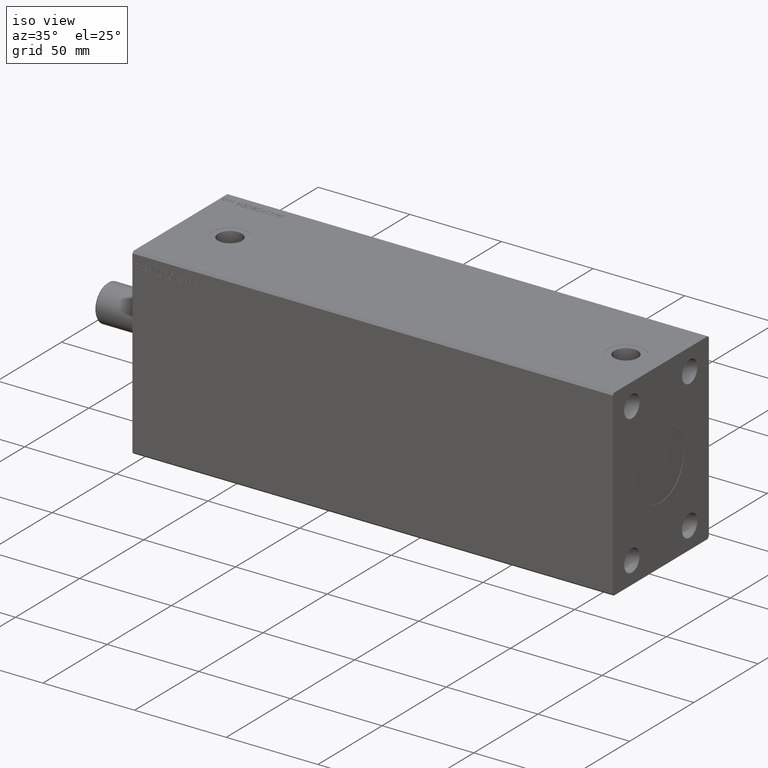
[diagram: clean part render]
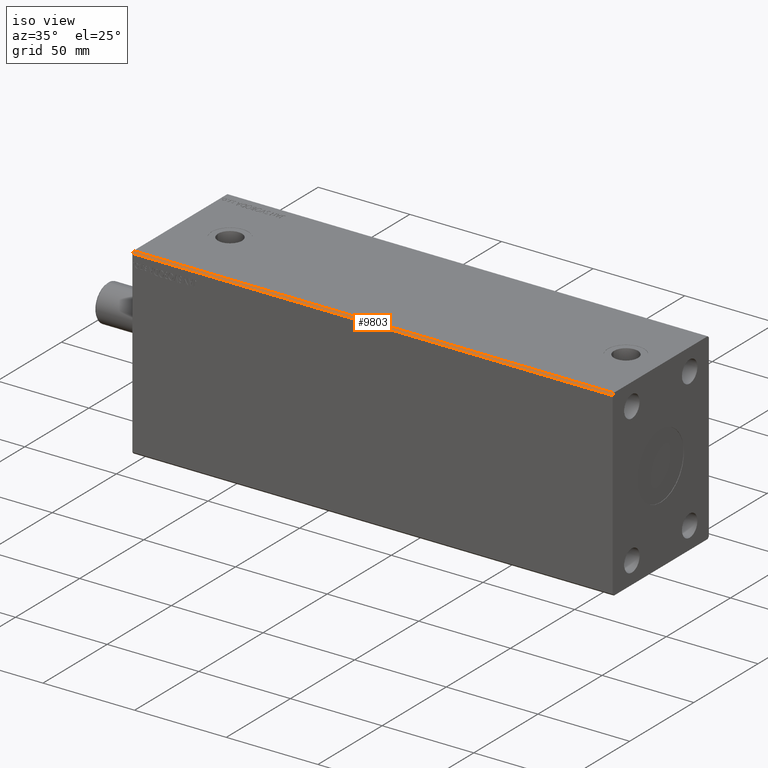
[diagram: same view with one face highlighted and labeled with its STEP entity id]
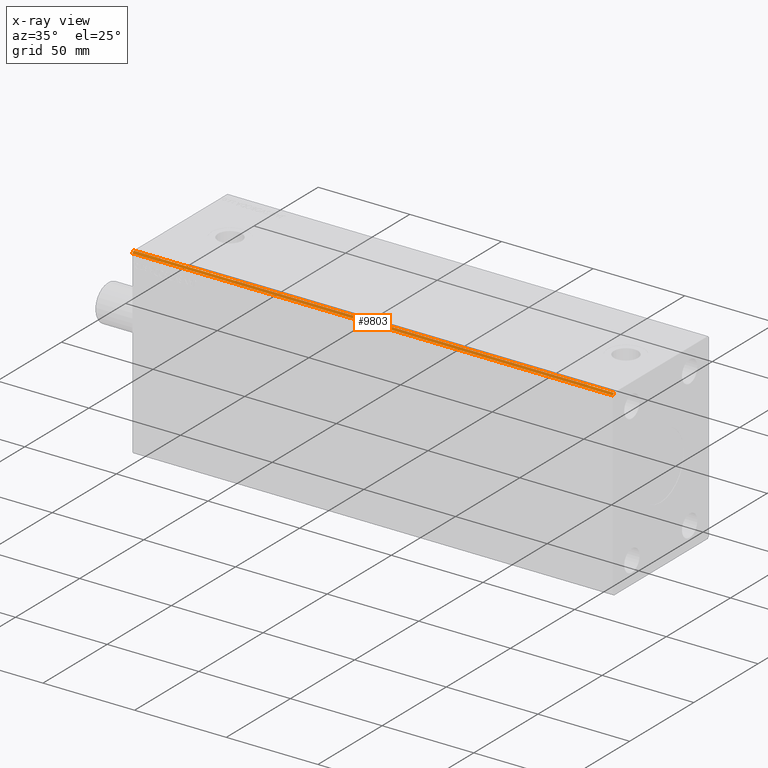
[diagram: x-ray of the same camera — body ghosted, the highlighted face saturated]
A machine part, iso view. The second image highlights one B-rep face of the part: STEP entity #9803.
The next image is the same camera in x-ray: the body ghosted, the highlighted face saturated — about 0% of this face is hidden behind the body in this view.
In plain terms, the highlighted planar face has unit normal (0, 0.7071, -0.7071).
Its self-contained STEP definition (entity closure, byte-faithful):
#665 = EDGE_CURVE ( 'NONE', #36660, #4053, #11040, .T. ) ;
#735 = EDGE_LOOP ( 'NONE', ( #9226, #15755, #7042, #28615 ) ) ;
#1335 = AXIS2_PLACEMENT_3D ( 'NONE', #35379, #42364, #24612 ) ;
#2355 = LINE ( 'NONE', #9316, #23075 ) ;
#4053 = VERTEX_POINT ( 'NONE', #34500 ) ;
#4320 = EDGE_CURVE ( 'NONE', #5633, #5836, #41718, .T. ) ;
#5519 = VECTOR ( 'NONE', #9069, 1000.000000000000000 ) ;
#5633 = VERTEX_POINT ( 'NONE', #33251 ) ;
#5836 = VERTEX_POINT ( 'NONE', #31196 ) ;
#6314 = CARTESIAN_POINT ( 'NONE',  ( 262.0000000000000000, -36.50000000000001421, 49.99999999999998579 ) ) ;
#7042 = ORIENTED_EDGE ( 'NONE', *, *, #8164, .F. ) ;
#8164 = EDGE_CURVE ( 'NONE', #36660, #5633, #9680, .T. ) ;
#9069 = DIRECTION ( 'NONE',  ( -1.000000000000000000, -0.000000000000000000, -0.000000000000000000 ) ) ;
#9226 = ORIENTED_EDGE ( 'NONE', *, *, #20943, .T. ) ;
#9316 = CARTESIAN_POINT ( 'NONE',  ( 0.000000000000000000, -36.50000000000001421, 49.99999999999998579 ) ) ;
#9680 = LINE ( 'NONE', #6314, #24994 ) ;
#9803 = ADVANCED_FACE ( 'NONE', ( #21465 ), #34715, .F. ) ;
#11040 = LINE ( 'NONE', #31715, #16202 ) ;
#15755 = ORIENTED_EDGE ( 'NONE', *, *, #4320, .F. ) ;
#16202 = VECTOR ( 'NONE', #41641, 1000.000000000000000 ) ;
#20943 = EDGE_CURVE ( 'NONE', #4053, #5836, #2355, .T. ) ;
#21465 = FACE_OUTER_BOUND ( 'NONE', #735, .T. ) ;
#23052 = DIRECTION ( 'NONE',  ( 0.000000000000000000, -0.7071067811865474617, -0.7071067811865474617 ) ) ;
#23075 = VECTOR ( 'NONE', #23052, 1000.000000000000114 ) ;
#24612 = DIRECTION ( 'NONE',  ( 0.000000000000000000, 0.7071067811865474617, 0.7071067811865474617 ) ) ;
#24994 = VECTOR ( 'NONE', #40076, 1000.000000000000114 ) ;
#28615 = ORIENTED_EDGE ( 'NONE', *, *, #665, .T. ) ;
#31196 = CARTESIAN_POINT ( 'NONE',  ( 0.000000000000000000, -37.50000000000001421, 48.99999999999998579 ) ) ;
#31715 = CARTESIAN_POINT ( 'NONE',  ( 262.0000000000000000, -36.50000000000001421, 49.99999999999998579 ) ) ;
#31793 = CARTESIAN_POINT ( 'NONE',  ( 262.0000000000000000, -37.50000000000001421, 48.99999999999998579 ) ) ;
#33251 = CARTESIAN_POINT ( 'NONE',  ( 262.0000000000000000, -37.50000000000001421, 48.99999999999998579 ) ) ;
#34500 = CARTESIAN_POINT ( 'NONE',  ( 0.000000000000000000, -36.50000000000001421, 49.99999999999998579 ) ) ;
#34715 = PLANE ( 'NONE',  #1335 ) ;
#35379 = CARTESIAN_POINT ( 'NONE',  ( 262.0000000000000000, -36.50000000000001421, 49.99999999999998579 ) ) ;
#36660 = VERTEX_POINT ( 'NONE', #37953 ) ;
#37953 = CARTESIAN_POINT ( 'NONE',  ( 262.0000000000000000, -36.50000000000001421, 49.99999999999998579 ) ) ;
#40076 = DIRECTION ( 'NONE',  ( 0.000000000000000000, -0.7071067811865474617, -0.7071067811865474617 ) ) ;
#41641 = DIRECTION ( 'NONE',  ( -1.000000000000000000, -0.000000000000000000, -0.000000000000000000 ) ) ;
#41718 = LINE ( 'NONE', #31793, #5519 ) ;
#42364 = DIRECTION ( 'NONE',  ( 0.000000000000000000, 0.7071067811865475727, -0.7071067811865475727 ) ) ;